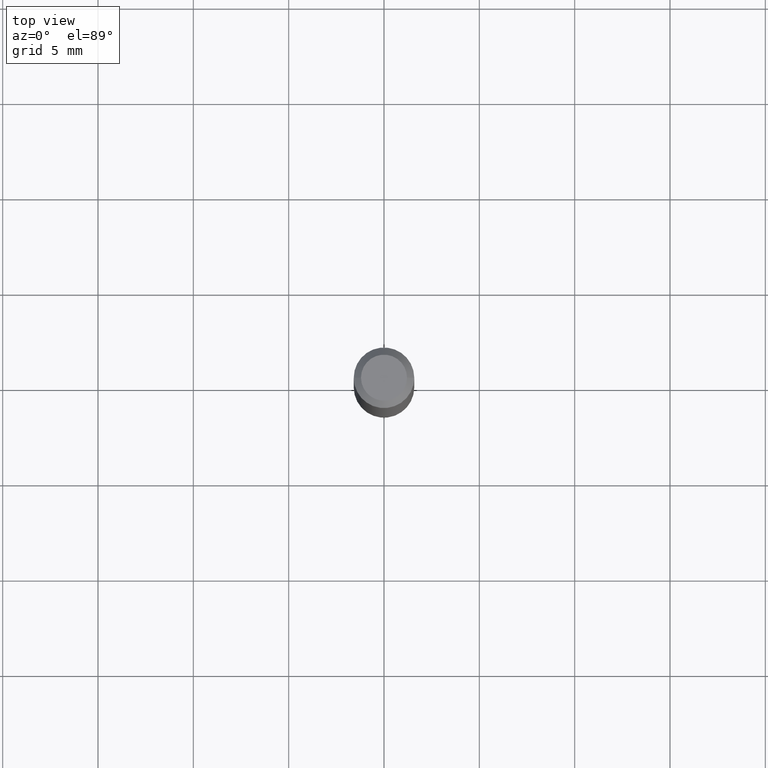
[diagram: clean part render]
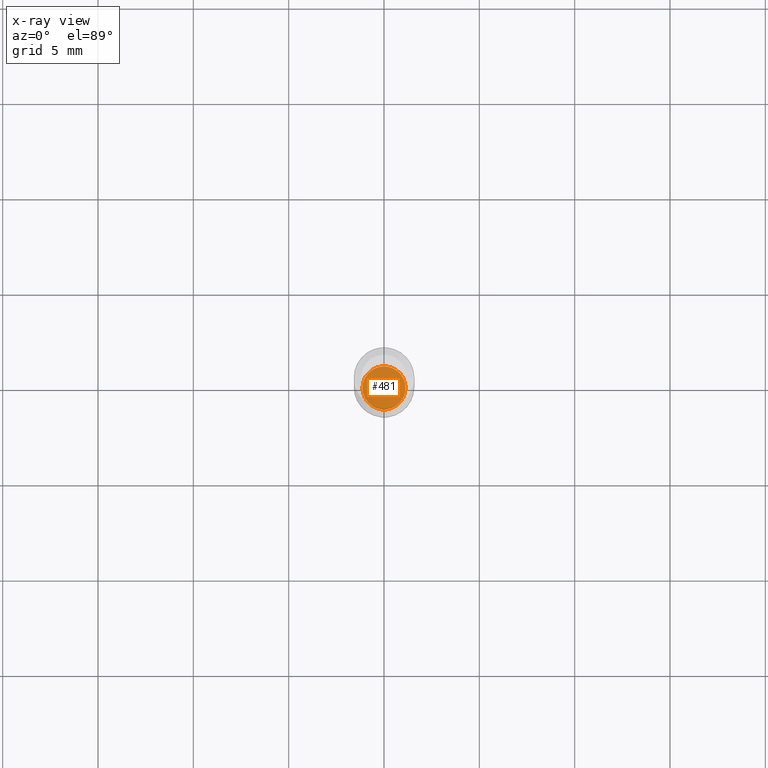
[diagram: x-ray — body ghosted, one internal face saturated and labeled with its STEP entity id]
A machine part, top view, then the same camera in x-ray: the body is ghosted and one INTERNAL B-rep face — a face not visible from any outside direction — is saturated and labeled: STEP entity #481.
In plain terms, the highlighted planar face has unit normal (-0, 0, 1).
Its self-contained STEP definition (entity closure, byte-faithful):
#11 = VERTEX_POINT ( 'NONE', #269 ) ;
#51 = EDGE_LOOP ( 'NONE', ( #302, #491 ) ) ;
#62 = CARTESIAN_POINT ( 'NONE',  ( 3.007926631607718216E-29, -4.294522046777069173E-15, -1.230000000000000204 ) ) ;
#70 = CIRCLE ( 'NONE', #126, 0.04449999999999997014 ) ;
#83 = DIRECTION ( 'NONE',  ( -2.445468806185136597E-29, 3.491481338843145583E-15, 1.000000000000000000 ) ) ;
#94 = VERTEX_POINT ( 'NONE', #395 ) ;
#115 = AXIS2_PLACEMENT_3D ( 'NONE', #206, #83, #334 ) ;
#126 = AXIS2_PLACEMENT_3D ( 'NONE', #191, #359, #436 ) ;
#138 = FACE_OUTER_BOUND ( 'NONE', #51, .T. ) ;
#145 = PLANE ( 'NONE',  #405 ) ;
#161 = CIRCLE ( 'NONE', #115, 0.04449999999999997014 ) ;
#191 = CARTESIAN_POINT ( 'NONE',  ( 3.007926631607718216E-29, -4.294522046777069173E-15, -1.230000000000000204 ) ) ;
#206 = CARTESIAN_POINT ( 'NONE',  ( 3.007926631607718216E-29, -4.294522046777069173E-15, -1.230000000000000204 ) ) ;
#259 = EDGE_CURVE ( 'NONE', #11, #94, #70, .T. ) ;
#269 = CARTESIAN_POINT ( 'NONE',  ( -0.04449999999999997014, -3.975681302189714292E-15, -1.230000000000000204 ) ) ;
#302 = ORIENTED_EDGE ( 'NONE', *, *, #361, .F. ) ;
#307 = DIRECTION ( 'NONE',  ( -2.438088387897960049E-29, 3.491481338843145188E-15, 1.000000000000000000 ) ) ;
#334 = DIRECTION ( 'NONE',  ( 1.000000000000000000, -6.982962677686261977E-15, 0.000000000000000000 ) ) ;
#359 = DIRECTION ( 'NONE',  ( -2.445468806185136597E-29, 3.491481338843145583E-15, 1.000000000000000000 ) ) ;
#361 = EDGE_CURVE ( 'NONE', #94, #11, #161, .T. ) ;
#395 = CARTESIAN_POINT ( 'NONE',  ( 0.04449999999999997014, -4.605263885934107852E-15, -1.230000000000000204 ) ) ;
#405 = AXIS2_PLACEMENT_3D ( 'NONE', #62, #307, #423 ) ;
#423 = DIRECTION ( 'NONE',  ( 1.000000000000000000, -6.982962677686265922E-15, 4.876176775795935793E-29 ) ) ;
#436 = DIRECTION ( 'NONE',  ( 1.000000000000000000, -6.982962677686261977E-15, 0.000000000000000000 ) ) ;
#481 = ADVANCED_FACE ( 'NONE', ( #138 ), #145, .F. ) ;
#491 = ORIENTED_EDGE ( 'NONE', *, *, #259, .F. ) ;